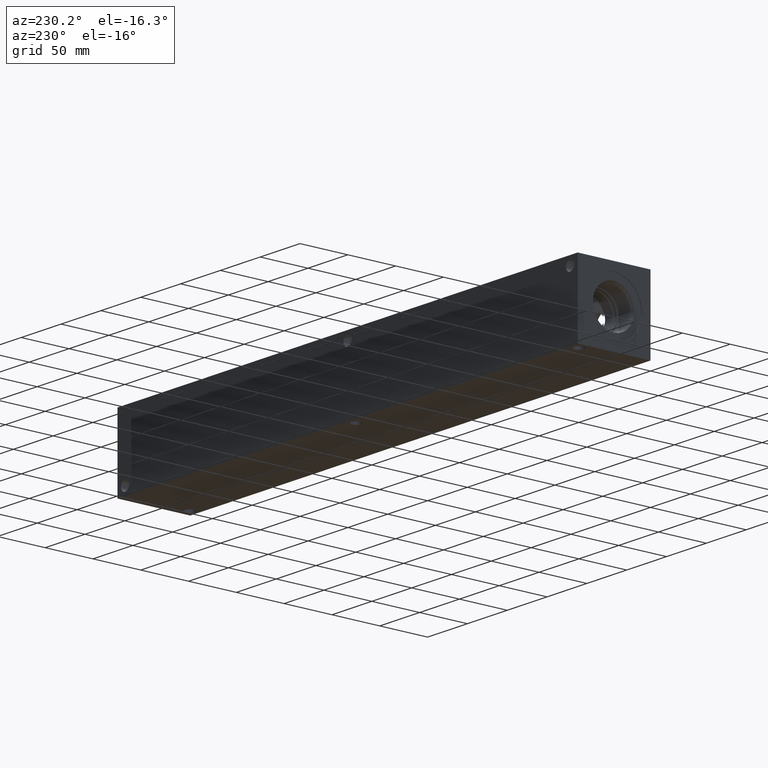
[diagram: clean part render]
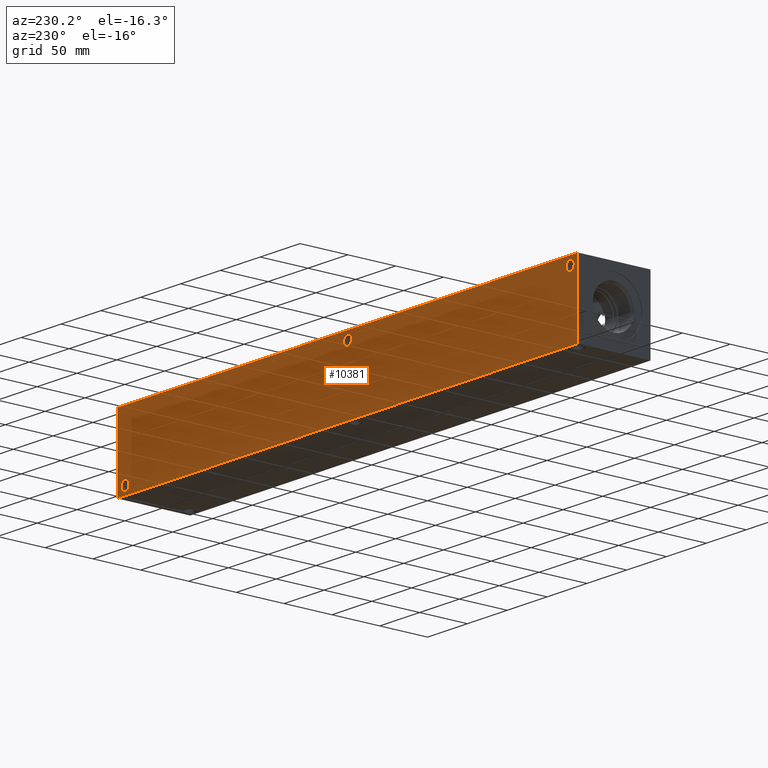
[diagram: same view with one face highlighted and labeled with its STEP entity id]
A machine part, auxiliary view. The second image highlights one B-rep face of the part: STEP entity #10381.
In plain terms, the highlighted planar face has unit normal (0, 1, 0).
Its self-contained STEP definition (entity closure, byte-faithful):
#472=CIRCLE('',#10981,5.1562);
#475=CIRCLE('',#10990,5.1562);
#478=CIRCLE('',#10999,5.1562);
#650=FACE_BOUND('',#2266,.T.);
#651=FACE_BOUND('',#2267,.T.);
#652=FACE_BOUND('',#2268,.T.);
#1652=FACE_OUTER_BOUND('',#2265,.T.);
#2265=EDGE_LOOP('',(#9244,#9245,#9246,#9247));
#2266=EDGE_LOOP('',(#9248));
#2267=EDGE_LOOP('',(#9249));
#2268=EDGE_LOOP('',(#9250));
#2548=LINE('',#15999,#3334);
#3066=LINE('',#18794,#3852);
#3067=LINE('',#18797,#3853);
#3068=LINE('',#18798,#3854);
#3334=VECTOR('',#11587,10.);
#3852=VECTOR('',#13575,10.);
#3853=VECTOR('',#13578,10.);
#3854=VECTOR('',#13579,10.);
#4180=VERTEX_POINT('',#15996);
#4181=VERTEX_POINT('',#15998);
#4714=VERTEX_POINT('',#18364);
#4719=VERTEX_POINT('',#18380);
#4724=VERTEX_POINT('',#18396);
#4833=VERTEX_POINT('',#18790);
#4835=VERTEX_POINT('',#18796);
#5319=EDGE_CURVE('',#4180,#4181,#2548,.T.);
#6117=EDGE_CURVE('',#4714,#4714,#472,.T.);
#6126=EDGE_CURVE('',#4719,#4719,#475,.T.);
#6135=EDGE_CURVE('',#4724,#4724,#478,.T.);
#6315=EDGE_CURVE('',#4833,#4181,#3066,.T.);
#6316=EDGE_CURVE('',#4835,#4833,#3067,.T.);
#6317=EDGE_CURVE('',#4835,#4180,#3068,.T.);
#9244=ORIENTED_EDGE('',*,*,#6316,.T.);
#9245=ORIENTED_EDGE('',*,*,#6315,.T.);
#9246=ORIENTED_EDGE('',*,*,#5319,.F.);
#9247=ORIENTED_EDGE('',*,*,#6317,.F.);
#9248=ORIENTED_EDGE('',*,*,#6117,.T.);
#9249=ORIENTED_EDGE('',*,*,#6126,.T.);
#9250=ORIENTED_EDGE('',*,*,#6135,.T.);
#9519=PLANE('',#11196);
#10381=ADVANCED_FACE('',(#1652,#650,#651,#652),#9519,.T.);
#10981=AXIS2_PLACEMENT_3D('',#18366,#13074,#13075);
#10990=AXIS2_PLACEMENT_3D('',#18382,#13094,#13095);
#10999=AXIS2_PLACEMENT_3D('',#18398,#13114,#13115);
#11196=AXIS2_PLACEMENT_3D('',#18795,#13576,#13577);
#11587=DIRECTION('',(-1.,0.,0.));
#13074=DIRECTION('center_axis',(0.,-1.,0.));
#13075=DIRECTION('ref_axis',(1.,0.,0.));
#13094=DIRECTION('center_axis',(0.,-1.,0.));
#13095=DIRECTION('ref_axis',(1.,0.,0.));
#13114=DIRECTION('center_axis',(0.,-1.,0.));
#13115=DIRECTION('ref_axis',(1.,0.,0.));
#13575=DIRECTION('',(0.,0.,1.));
#13576=DIRECTION('center_axis',(0.,1.,0.));
#13577=DIRECTION('ref_axis',(-1.,0.,0.));
#13578=DIRECTION('',(-1.,0.,0.));
#13579=DIRECTION('',(0.,0.,1.));
#15996=CARTESIAN_POINT('',(577.85,76.2,76.2));
#15998=CARTESIAN_POINT('',(0.,76.2,76.2));
#15999=CARTESIAN_POINT('',(577.85,76.2,76.2));
#18364=CARTESIAN_POINT('',(283.7688,76.2,67.4624));
#18366=CARTESIAN_POINT('Origin',(288.925,76.2,67.4624));
#18380=CARTESIAN_POINT('',(4.3688,76.2,67.4624));
#18382=CARTESIAN_POINT('Origin',(9.525,76.2,67.4624));
#18396=CARTESIAN_POINT('',(563.1688,76.2,8.7376));
#18398=CARTESIAN_POINT('Origin',(568.325,76.2,8.7376));
#18790=CARTESIAN_POINT('',(0.,76.2,0.));
#18794=CARTESIAN_POINT('',(0.,76.2,0.));
#18795=CARTESIAN_POINT('Origin',(577.85,76.2,0.));
#18796=CARTESIAN_POINT('',(577.85,76.2,0.));
#18797=CARTESIAN_POINT('',(577.85,76.2,0.));
#18798=CARTESIAN_POINT('',(577.85,76.2,0.));